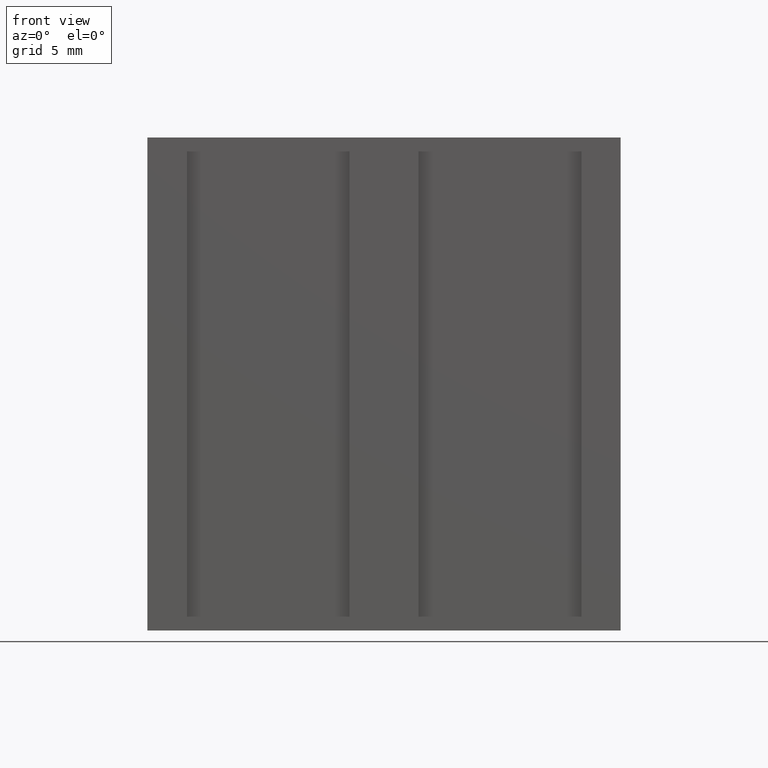
[diagram: clean part render]
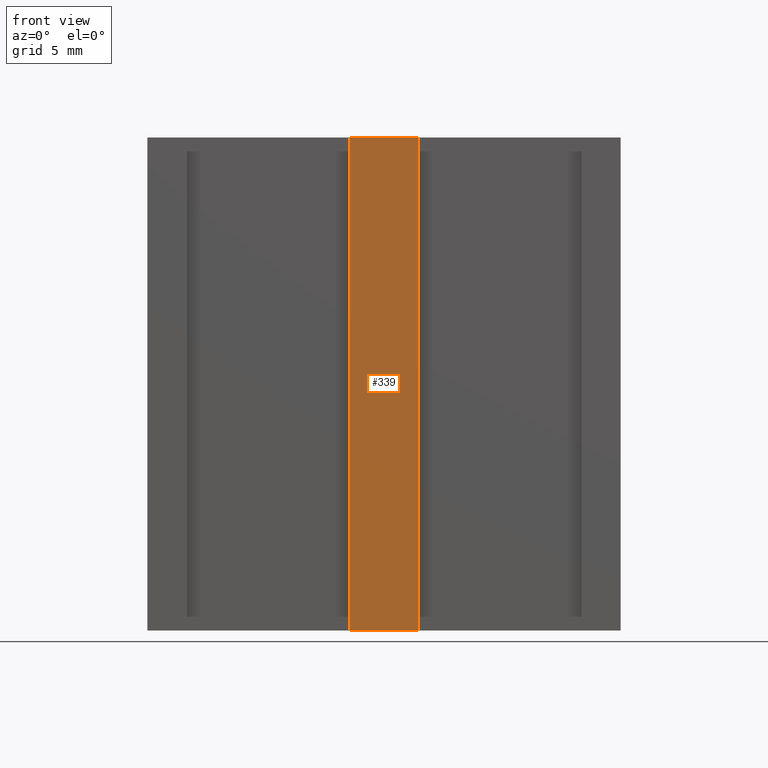
[diagram: same view with one face highlighted and labeled with its STEP entity id]
A machine part, front view. The second image highlights one B-rep face of the part: STEP entity #339.
In plain terms, the highlighted planar face has unit normal (0, -1, 0).
Its self-contained STEP definition (entity closure, byte-faithful):
#22=FACE_OUTER_BOUND('',#40,.T.);
#40=EDGE_LOOP('',(#252,#253,#254,#255));
#65=LINE('',#506,#107);
#79=LINE('',#539,#121);
#80=LINE('',#542,#122);
#81=LINE('',#543,#123);
#107=VECTOR('',#409,10.);
#121=VECTOR('',#435,10.);
#122=VECTOR('',#438,10.);
#123=VECTOR('',#439,10.);
#149=VERTEX_POINT('',#503);
#150=VERTEX_POINT('',#505);
#163=VERTEX_POINT('',#537);
#164=VERTEX_POINT('',#541);
#181=EDGE_CURVE('',#150,#149,#65,.T.);
#198=EDGE_CURVE('',#163,#149,#79,.T.);
#199=EDGE_CURVE('',#163,#164,#80,.T.);
#200=EDGE_CURVE('',#164,#150,#81,.T.);
#252=ORIENTED_EDGE('',*,*,#199,.T.);
#253=ORIENTED_EDGE('',*,*,#200,.T.);
#254=ORIENTED_EDGE('',*,*,#181,.T.);
#255=ORIENTED_EDGE('',*,*,#198,.F.);
#324=PLANE('',#383);
#339=ADVANCED_FACE('',(#22),#324,.T.);
#383=AXIS2_PLACEMENT_3D('',#540,#436,#437);
#409=DIRECTION('',(1.,0.,0.));
#435=DIRECTION('',(0.,0.,-1.));
#436=DIRECTION('center_axis',(0.,-1.,0.));
#437=DIRECTION('ref_axis',(0.,0.,-1.));
#438=DIRECTION('',(-1.,0.,0.));
#439=DIRECTION('',(0.,0.,-1.));
#503=CARTESIAN_POINT('',(1.75,4.73042667009824E-15,-12.5));
#505=CARTESIAN_POINT('',(-1.75,4.73042667009824E-15,-12.5));
#506=CARTESIAN_POINT('',(1.75,4.73042667009824E-15,-12.5));
#537=CARTESIAN_POINT('',(1.75,4.73042667009824E-15,12.5));
#539=CARTESIAN_POINT('',(1.75,4.73042667009824E-15,0.));
#540=CARTESIAN_POINT('Origin',(1.75,4.73042667009824E-15,0.));
#541=CARTESIAN_POINT('',(-1.75,4.73042667009824E-15,12.5));
#542=CARTESIAN_POINT('',(1.75,4.73042667009824E-15,12.5));
#543=CARTESIAN_POINT('',(-1.75,4.73042667009824E-15,0.));